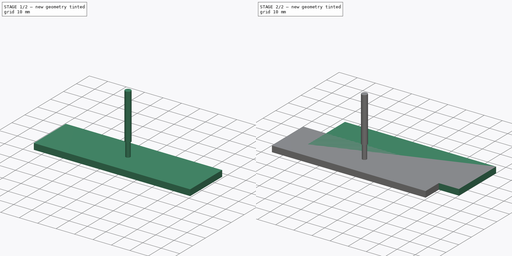
[diagram: build sequence overview — one tinted view per stage of 2, left to right]
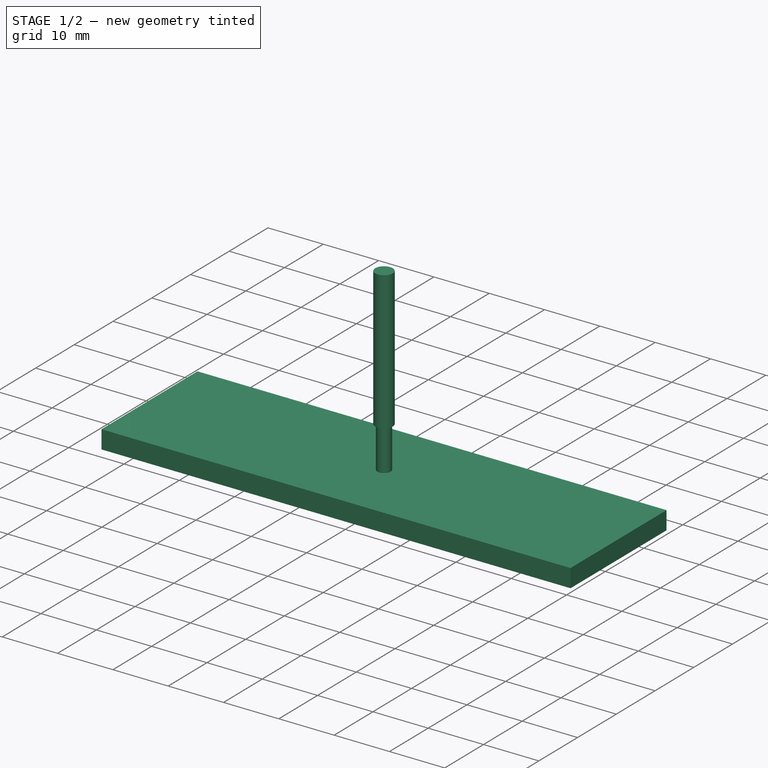
[diagram: stage 1 of 2 — iso view after this stage's code; geometry added in this stage tinted green]
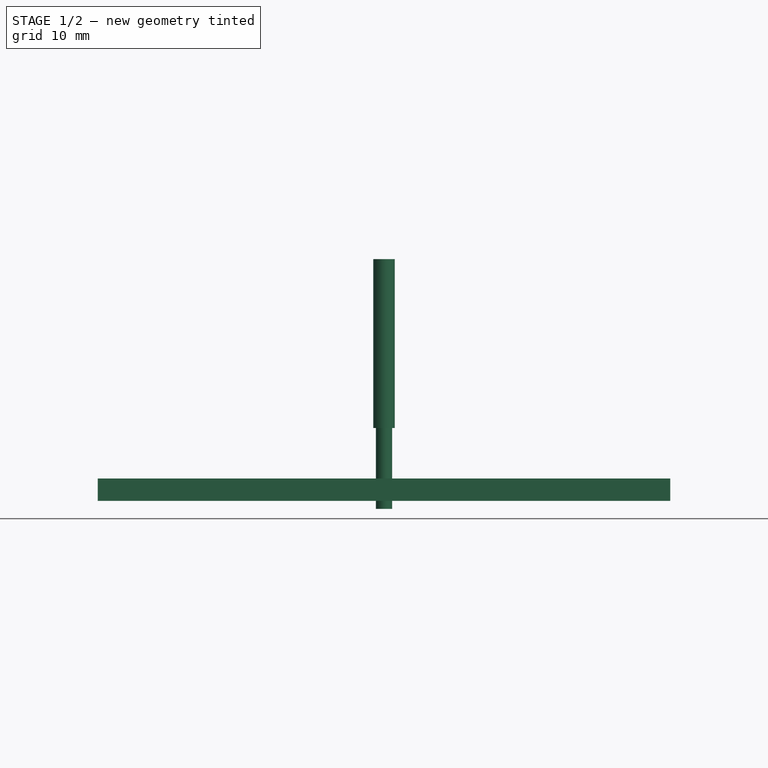
[diagram: stage 1 of 2 — front view after this stage's code; geometry added in this stage tinted green]
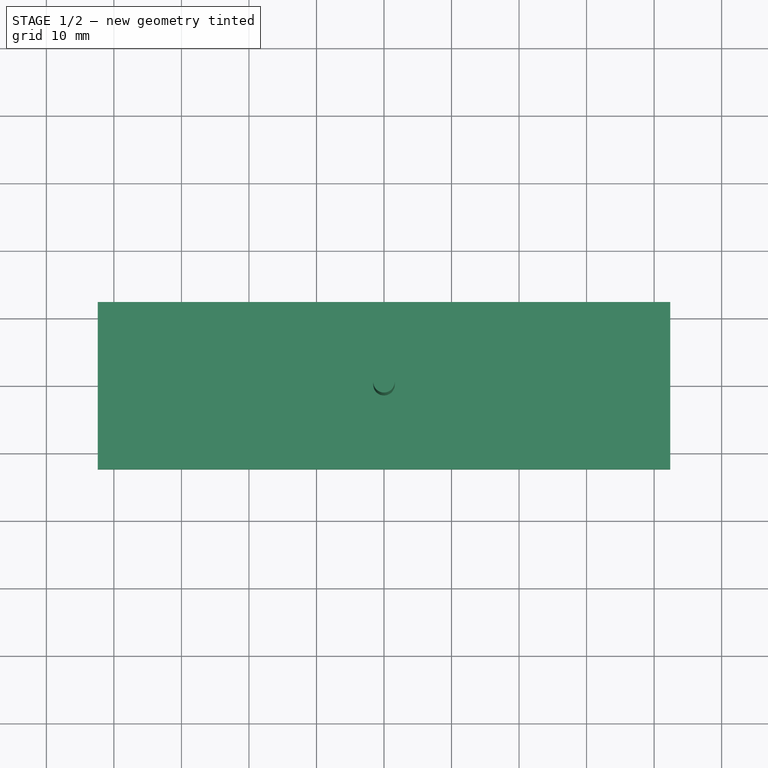
[diagram: stage 1 of 2 — top view after this stage's code; geometry added in this stage tinted green]
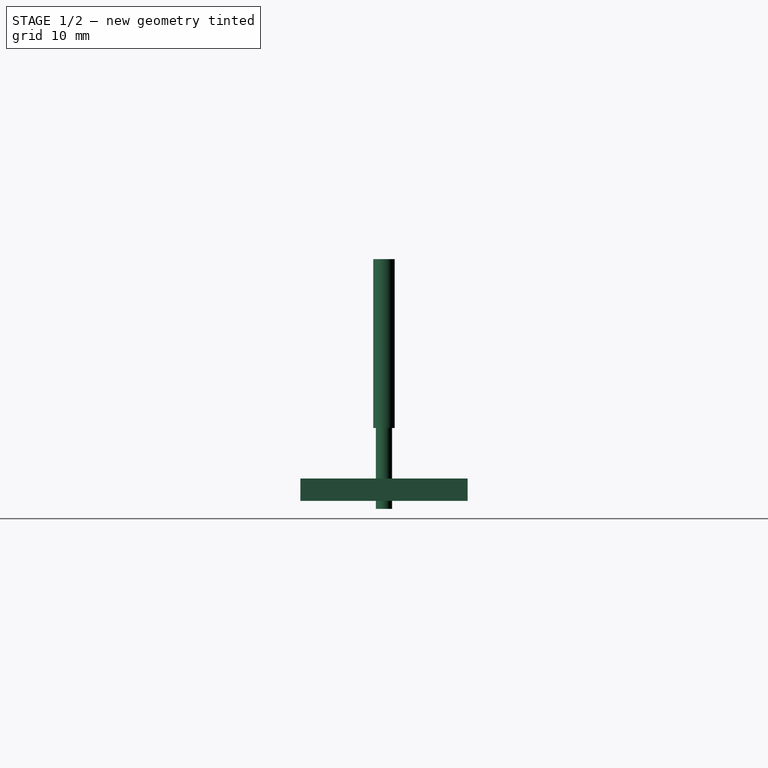
[diagram: stage 1 of 2 — right view after this stage's code; geometry added in this stage tinted green]
FCSTD DOCUMENT  (FreeCAD 0.20R29603 (Git))
Label: Cover
License: All rights reserved
LicenseURL: http://en.wikipedia.org/wiki/All_rights_reserved
objects: App::DocumentObjectGroup×9, Path::FeaturePython×6, Part::FeaturePython×4, Sketcher::SketchObject×2, App::FeaturePython×2, Part::Face×2, Spreadsheet::Sheet×1
note: 10 computed .brp shape members not serialized (recipe doc carries the construction recipe); baked Part::Feature solids carry a one-line shape summary decoded from their .brp

FEATURE [Path::FeaturePython] Job  label="Job_Front"  # Path/CAM operation (typed FeaturePython)
  CycleTime = 00:29:58
  Fixtures = G54
  GeometryTolerance = 0.01
  JobType = 0
  LastPostProcessDate = 2023-07-29 14:56:17.214878
  LastPostProcessOutput = <path>
  Model = -> Model
  Operations = -> Operations
  OrderOutputBy = 0
  PostProcessor = 8
  SetupSheet = -> SetupSheet
  SplitOutput = false
  Stock = -> Stock001
  Tools = -> Tools
FEATURE [App::DocumentObjectGroup] Group  label="Vis_Front"
  Group = -> [Operations,Model,Stock001]
FEATURE [App::FeaturePython] SetupSheet001  # Path/CAM operation (typed FeaturePython)
  ClearanceHeightExpression = OpStockZMax+SetupSheet001.ClearanceHeightOffset
  ClearanceHeightOffset = 5
  CoolantMode = 0
  CoolantModes = None | Flood | Mist
  FinalDepthExpression = OpFinalDepth
  HorizRapid = 0
  SafeHeightExpression = OpStockZMax+SetupSheet001.SafeHeightOffset
  SafeHeightOffset = 3
  StartDepthExpression = OpStartDepth
  StepDownExpression = 0.5
  VertRapid = 0
  expr: StepDownExpression = 0.5
FEATURE [App::DocumentObjectGroup] Model001
  Group = -> [Face001]
FEATURE [Part::FeaturePython] Stock002  # WARN: FeaturePython — macro-defined, semantics opaque (R4)
  Base = -> Model001
  ExtXneg = 1
  ExtXpos = 1
  ExtYneg = 1
  ExtYpos = 1
  ExtZneg = -1.2
  ExtZpos = 4.5
  Placement = pos=(-41.4,-11.3891,0) rot=(0,0,1;0rad)
  StockType = FromBase
FEATURE [Part::FeaturePython] ToolBit  label="2.4mm Endmill001"  # Path/CAM toolbit (typed FeaturePython)
  BitPropertyNames = Chipload | CuttingEdgeHeight | Diameter | Flutes | Length | Material | ShankDiameter | SpindleDirection
  BitShape = C:/Program Files/FreeCAD 0.20/Mod\Path\Tools\Shape\endmill.fcstd
  Chipload = 0
  CuttingEdgeHeight = 12
  Diameter = 2.4
  File = <userpath>/AppData/Roaming/FreeCAD/Bits\Bit\2.4mm_Endmill.fctb
  Flutes = 2
  Length = 37
  Material = 0
  ShankDiameter = 3.17
  ShapeName = endmill
  SpindleDirection = 0
FEATURE [Path::FeaturePython] TC__2_4mm_Endmill001  label="TC: 2.4mm Endmill001"  # Path/CAM operation (typed FeaturePython)
  HorizFeed = 1.67
  HorizRapid = 0
  SpindleDir = 0
  SpindleSpeed = 10000
  Tool = -> ToolBit
  ToolNumber = 2
  VertFeed = 1.67
  VertRapid = 0
  expr: HorizRapid = SetupSheet001.HorizRapid
  expr: VertRapid = SetupSheet001.VertRapid
FEATURE [App::DocumentObjectGroup] Tools001
  Group = -> [TC__2_4mm_Endmill001]
FEATURE [Path::FeaturePython] Profile001  # Path/CAM operation (typed FeaturePython)
  Active = true
  AreaParams:
    Tolerance = 1e-07
    FitArcs = True
    Simplify = False
    CleanDistance = 0.0
    Accuracy = 0.01
    Unit = 1.0
    MinArcPoints = 4
    MaxArcPoints = 100
    ClipperScale = 10000000.0
    Fill = 0
    Coplanar = 0
    Reorient = True
    Outline = False
    Explode = False
    OpenMode = 0
    Deflection = 0.01
    SubjectFill = 0
    ClipFill = 0
    Offset = -1.2
    ExtraPass = 0
    Stepover = 0.0
    LastStepover = 0.0
    JoinType = 0
    EndType = 0
    MiterLimit = 2.0
    RoundPrecision = 0.0
    PocketMode = 0
    ToolRadius = 1.0
    PocketExtraOffset = 0.0
    PocketStepover = 0.0
    PocketLastStepover = 0.0
    FromCenter = False
    Angle = 45.0
    AngleShift = 0.0
    Shift = 0.0
    Thicken = False
    SectionCount = -1
    Stepdown = 1.0
    SectionOffset = 0.0
    SectionTolerance = 1e-06
    SectionMode = 2
    Project = False
  Base = -> [Face001]
  ClearanceHeight = 9.5
  CoolantMode = 0
  CycleTime = 00:28:00
  Direction = 0
  FinalDepth = 1.2
  HandleMultipleFeatures = 0
  JoinType = 0
  MiterLimit = 0.1
  OffsetExtra = 0
  OpFinalDepth = 1.2
  OpStartDepth = 4.5
  OpStockZMax = 4.5
  OpStockZMin = 1.2
  OpToolDiameter = 2.4
  PathParams = {'orientation': 1, 'feedrate': 1.67, 'feedrate_v': 1.67, 'verbose': True, 'resume_height': 7.5, 'retraction': 9.5, 'return_end': True, 'preamble': False}
  SafeHeight = 7.5
  Side = 1
  SplitArcs = false
  StartDepth = 4.5
  StartPoint = (0,0,0)
  StepDown = 0.5
  ToolController = -> TC__2_4mm_Endmill001
  UseComp = true
  UseStartPoint = false
  processCircles = false
  processHoles = false
  processPerimeter = true
  expr: ClearanceHeight = OpStockZMax + SetupSheet001.ClearanceHeightOffset
  expr: FinalDepth = OpFinalDepth
  expr: SafeHeight = OpStockZMax + SetupSheet001.SafeHeightOffset
  expr: StartDepth = OpStartDepth
  expr: StepDown = 0.5
FEATURE [App::DocumentObjectGroup] Operations001
  Group = -> [Profile001]
FEATURE [Path::FeaturePython] Job001  label="Job_Back"  # Path/CAM operation (typed FeaturePython)
  CycleTime = 00:28:00
  Fixtures = G54
  GeometryTolerance = 0.01
  JobType = 0
  LastPostProcessDate = 2023-07-29 14:56:28.999966
  LastPostProcessOutput = <path>
  Model = -> Model001
  Operations = -> Operations001
  OrderOutputBy = 0
  PostProcessor = 8
  SetupSheet = -> SetupSheet001
  SplitOutput = false
  Stock = -> Stock002
  Tools = -> Tools001
FEATURE [App::DocumentObjectGroup] Group002  label="Vis_Back"
  Group = -> [Operations001,Model001,Stock002]
note: 2 file-system paths scrubbed to <path> (originals preserved in the JSON sidecar)
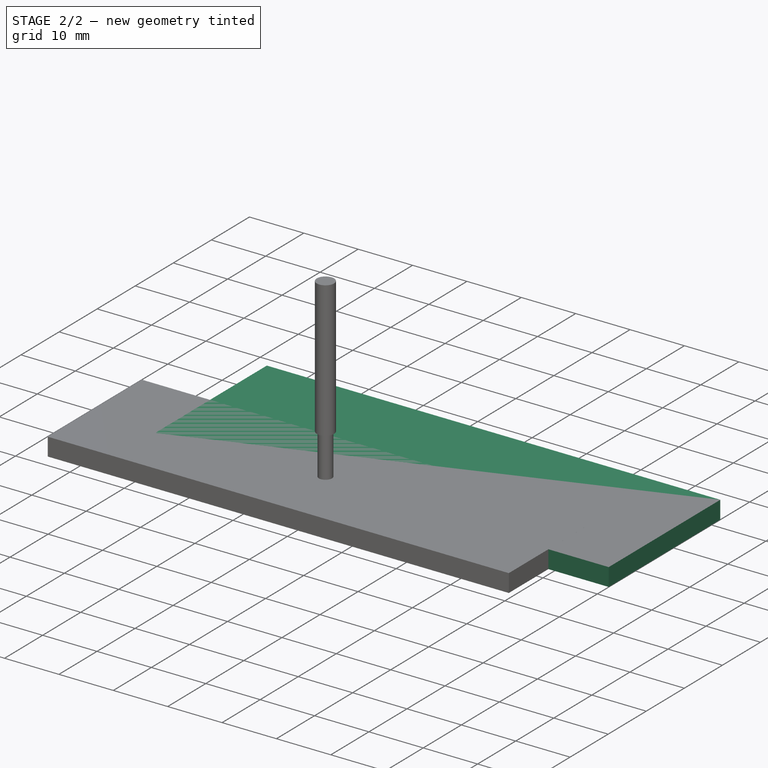
[diagram: stage 2 of 2 — iso view after this stage's code; geometry added in this stage tinted green]
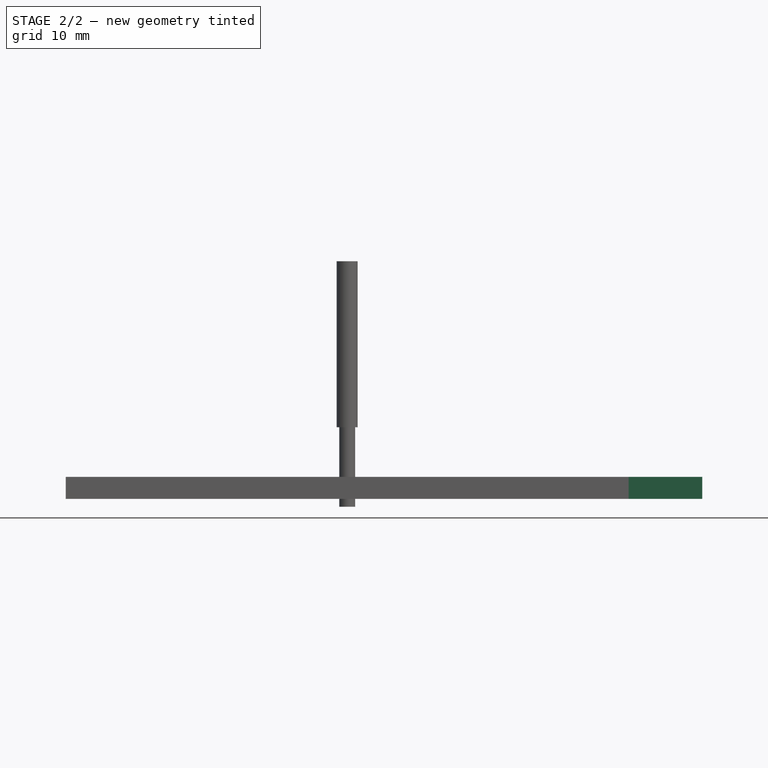
[diagram: stage 2 of 2 — front view after this stage's code; geometry added in this stage tinted green]
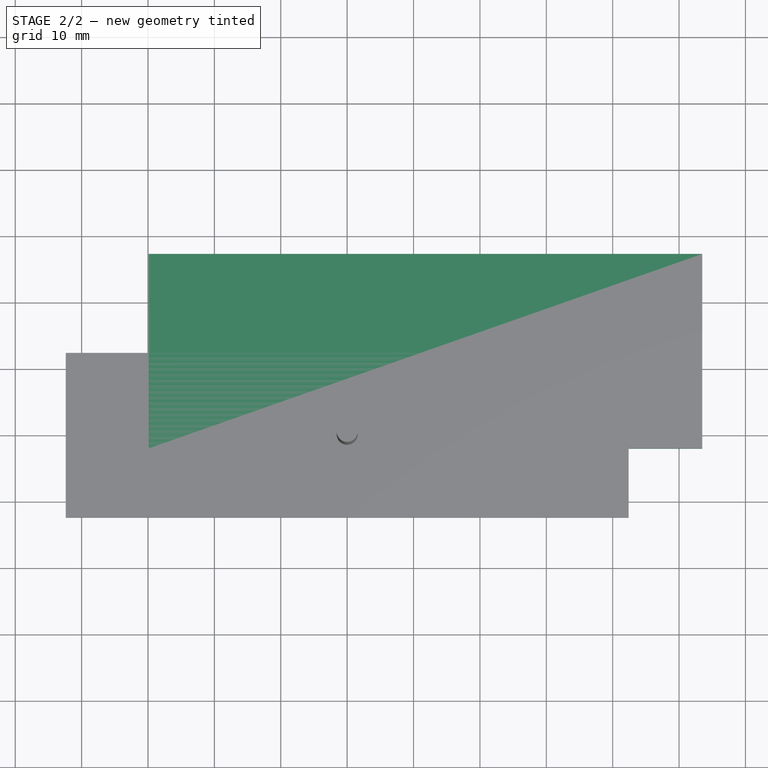
[diagram: stage 2 of 2 — top view after this stage's code; geometry added in this stage tinted green]
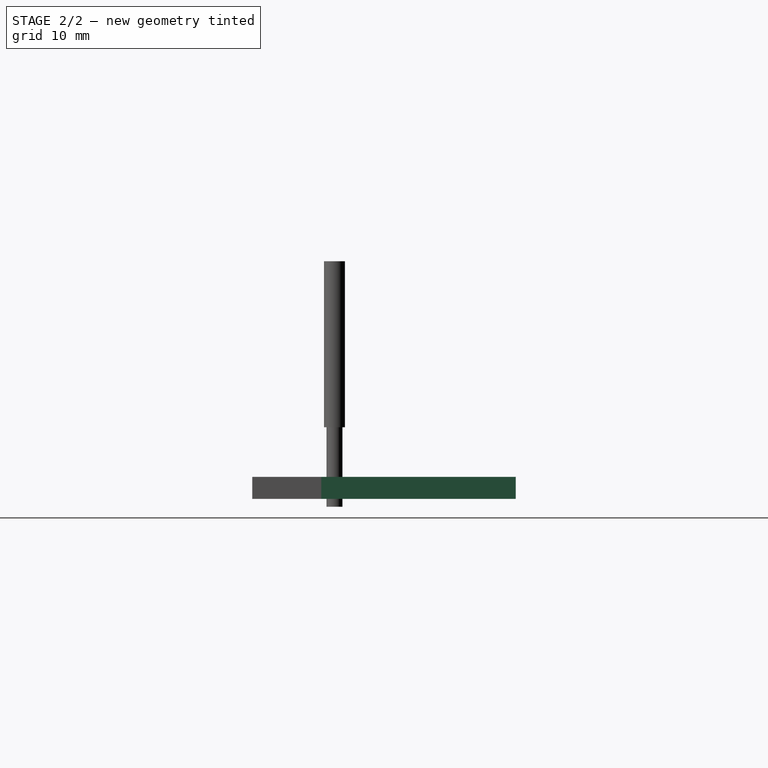
[diagram: stage 2 of 2 — right view after this stage's code; geometry added in this stage tinted green]
FEATURE [Sketcher::SketchObject] Sketch  label="Front"
  FullyConstrained = true
  expr: Constraints[11] = Spreadsheet.xlr_r
  expr: Constraints[14] = Spreadsheet.screw_r
  expr: Constraints[15] = <<Parameters>>.xlr_y
  expr: Constraints[18] = Spreadsheet.screw_r
  expr: Constraints[19] = <<Parameters>>.xlr_x
  expr: Constraints[22] = Spreadsheet.screw_r
  expr: Constraints[26] = <<Parameters>>.btn_r
  expr: Constraints[2] = <<Parameters>>.usb_y
  expr: Constraints[31] = <<Parameters>>.btn_r
  expr: Constraints[33] = <<Parameters>>.btn_r
  expr: Constraints[35] = <<Parameters>>.btn_r
  expr: Constraints[40] = <<Parameters>>.btn_x
  expr: Constraints[41] = <<Parameters>>.btn_x
  expr: Constraints[42] = <<Parameters>>.btn_y
  expr: Constraints[43] = <<Parameters>>.btn_y
  expr: Constraints[52] = <<Parameters>>.oled_x
  expr: Constraints[53] = <<Parameters>>.oled_y
  expr: Constraints[56] = <<Parameters>>.usb_x
  expr: Constraints[63] = <<Parameters>>.xlr_y
  expr: Constraints[64] = <<Parameters>>.xlr_x
  expr: Constraints[8] = Spreadsheet.screw_r
  sketch-geometry (29):
    g0: GeomPoint X=20.75 Y=0 Z=0
    g1: LineSegment StartX=25.5 StartY=0 StartZ=0 EndX=16 EndY=0 EndZ=0
    g2: LineSegment StartX=16 StartY=4 StartZ=0 EndX=25.5 EndY=4 EndZ=0
    g3: LineSegment StartX=16 StartY=4 StartZ=0 EndX=16 EndY=0 EndZ=0
    g4: LineSegment StartX=25.5 StartY=4 StartZ=0 EndX=25.5 EndY=0 EndZ=0
    g5: GeomPoint X=6.1 Y=4 Z=0
    g6: Circle CenterX=6.1 CenterY=4 CenterZ=0 NormalX=0 NormalY=0 NormalZ=1 AngleXU=0 Radius=1.5
    g7: GeomPoint X=4.6 Y=4 Z=0
    g8: Circle CenterX=-13.5 CenterY=12.8 CenterZ=0 NormalX=0 NormalY=0 NormalZ=1 AngleXU=0 Radius=11.2
    g9: GeomPoint X=-2.3 Y=12.8 Z=0
    g10: Circle CenterX=-23.4 CenterY=2.9 CenterZ=0 NormalX=0 NormalY=0 NormalZ=1 AngleXU=0 Radius=1.5
    g11: GeomPoint X=-21.9 Y=2.9 Z=0
    g12: Circle CenterX=-3.6 CenterY=22.7 CenterZ=0 NormalX=0 NormalY=0 NormalZ=1 AngleXU=0 Radius=1.5
    g13: GeomPoint X=-2.1 Y=22.7 Z=0
    g14: Circle CenterX=14.5 CenterY=17.3 CenterZ=0 NormalX=0 NormalY=0 NormalZ=1 AngleXU=0 Radius=1.5
    g15: GeomPoint X=16 Y=17.3 Z=0
    g16: Circle CenterX=8.5 CenterY=22.7 CenterZ=0 NormalX=0 NormalY=0 NormalZ=1 AngleXU=0 Radius=2
    g17: GeomPoint X=10.5 Y=22.7 Z=0
    g18: Circle CenterX=8.5 CenterY=11.9 CenterZ=0 NormalX=0 NormalY=0 NormalZ=1 AngleXU=0 Radius=2
    g19: Circle CenterX=20.5 CenterY=22.7 CenterZ=0 NormalX=0 NormalY=0 NormalZ=1 AngleXU=0 Radius=2
    g20: Circle CenterX=20.5 CenterY=11.9 CenterZ=0 NormalX=0 NormalY=0 NormalZ=1 AngleXU=0 Radius=2
    g21: GeomPoint X=22.5 Y=22.7 Z=0
    g22: GeomPoint X=22.5 Y=11.9 Z=0
    g23: GeomPoint X=10.5 Y=11.9 Z=0
    g24: LineSegment StartX=29.5 StartY=25.3 StartZ=0 EndX=54.5 EndY=25.3 EndZ=0
    g25: LineSegment StartX=54.5 StartY=25.3 StartZ=0 EndX=54.5 EndY=10.3 EndZ=0
    g26: LineSegment StartX=54.5 StartY=10.3 StartZ=0 EndX=29.5 EndY=10.3 EndZ=0
    g27: LineSegment StartX=29.5 StartY=10.3 StartZ=0 EndX=29.5 EndY=25.3 EndZ=0
    g28: GeomPoint X=42 Y=25.3 Z=0
  constraints (72):
    c: PointOnObject(g0,g-1)
    c: Parallel(g1,g2)
    c: DistanceY(g1,g2) = 4
    c: Horizontal(g4,g3)
    c: Symmetric(g1,g1,g0)
    c: Coincident(g6,g5)
    c: PointOnObject(g7,g6)
    c: Horizontal(g6,g7)
    c: DistanceX(g7,g6) = 1.5
    c: PointOnObject(g9,g8)
    c: Horizontal(g9,g8)
    c: DistanceX(g8,g9) = 11.2
    c: PointOnObject(g11,g10)
    c: Horizontal(g10,g11)
    c: DistanceX(g10,g11) = 1.5
    c: DistanceY(g10,g8) = 9.9
    c: PointOnObject(g13,g12)
    c: Horizontal(g13,g12)
    c: DistanceX(g12,g13) = 1.5
    c: DistanceX(g10,g8) = 9.9
    c: PointOnObject(g15,g14)
    c: Horizontal(g14,g15)
    c: DistanceX(g14,g15) = 1.5
    c: DistanceY(g-1,g14) = 17.3
    c: PointOnObject(g17,g16)
    c: Horizontal(g16,g17)
    c: DistanceX(g16,g17) = 2
    c: PointOnObject(g21,g19)
    c: PointOnObject(g22,g20)
    c: PointOnObject(g23,g18)
    c: Horizontal(g18,g23)
    c: DistanceX(g18,g23) = 2
    c: Horizontal(g19,g21)
    c: DistanceX(g19,g21) = 2
    c: Horizontal(g20,g22)
    c: DistanceX(g20,g22) = 2
    c: Vertical(g16,g18)
    c: Vertical(g19,g20)
    c: Horizontal(g16,g19)
    c: Horizontal(g20,g18)
    c: DistanceX(g14,g20) = 6
    c: DistanceX(g18,g14) = 6
    c: DistanceY(g18,g14) = 5.4
    c: DistanceY(g14,g16) = 5.4
    c: Coincident(g24,g25)
    c: Coincident(g25,g26)
    c: Coincident(g26,g27)
    c: Coincident(g27,g24)
    c: Horizontal(g24)
    c: Horizontal(g26)
    c: Vertical(g25)
    c: Vertical(g27)
    c: DistanceX(g24,g24) = 25
    c: DistanceY(g25,g25) = 15
    c: Horizontal(g12,g16)
    c: Coincident(g3,g1)
    c: DistanceX(g2,g2) = 9.5
    c: Parallel(g3,g4)
    c: Coincident(g2,g3)
    c: Coincident(g2,g4)
    c: Perpendicular(g3,g1)
    c: Coincident(g1,g4)
    c: DistanceX(g-1,g0) = 20.75
    c: DistanceY(g8,g12) = 9.9
    c: DistanceX(g8,g12) = 9.9
    c: Symmetric(g24,g24,g28)
    c: DistanceX(g14,g28) = 27.5
    c: DistanceY(g14,g28) = 8
    c: DistanceY(g-1,g6) = 4
    c: DistanceX(g-1,g14) = 14.5
    c: DistanceX(g-1,g6) = 6.1
    c: DistanceX(g8,g-1) = 13.5
FEATURE [App::FeaturePython] SetupSheet  # Path/CAM operation (typed FeaturePython)
  ClearanceHeightExpression = OpStockZMax+SetupSheet.ClearanceHeightOffset
  ClearanceHeightOffset = 5
  CoolantMode = 0
  CoolantModes = None | Flood | Mist
  FinalDepthExpression = OpFinalDepth
  HorizRapid = 0
  SafeHeightExpression = OpStockZMax+SetupSheet.SafeHeightOffset
  SafeHeightOffset = 3
  StartDepthExpression = OpStartDepth
  StepDownExpression = 0.5
  VertRapid = 0
FEATURE [Part::FeaturePython] ToolBit003  label="2.4mm Endmill"  # Path/CAM toolbit (typed FeaturePython)
  BitPropertyNames = Chipload | CuttingEdgeHeight | Diameter | Flutes | Length | Material | ShankDiameter | SpindleDirection
  BitShape = C:/Program Files/FreeCAD 0.20/Mod\Path\Tools\Shape\endmill.fcstd
  Chipload = 0
  CuttingEdgeHeight = 12
  Diameter = 2.4
  File = <userpath>/AppData/Roaming/FreeCAD/Bits\Bit\2.4mm_Endmill.fctb
  Flutes = 0
  Length = 37
  Material = 0
  ShankDiameter = 3.17
  ShapeName = endmill
  SpindleDirection = 0
FEATURE [Path::FeaturePython] TC__2_4mm_Endmill  label="TC: 2.4mm Endmill"  # Path/CAM operation (typed FeaturePython)
  HorizFeed = 1.67
  HorizRapid = 0
  SpindleDir = 0
  SpindleSpeed = 10000
  Tool = -> ToolBit003
  ToolNumber = 2
  VertFeed = 1.67
  VertRapid = 0
  expr: HorizRapid = SetupSheet.HorizRapid
  expr: VertRapid = SetupSheet.VertRapid
FEATURE [App::DocumentObjectGroup] Tools
  Group = -> [TC__2_4mm_Endmill]
FEATURE [Path::FeaturePython] Profile  # Path/CAM operation (typed FeaturePython)
  Active = true
  AreaParams:
    Tolerance = 1e-07
    FitArcs = True
    Simplify = False
    CleanDistance = 0.0
    Accuracy = 0.01
    Unit = 1.0
    MinArcPoints = 4
    MaxArcPoints = 100
    ClipperScale = 10000000.0
    Fill = 0
    Coplanar = 0
    Reorient = True
    Outline = False
    Explode = False
    OpenMode = 0
    Deflection = 0.01
    SubjectFill = 0
    ClipFill = 0
    Offset = -1.2
    ExtraPass = 0
    Stepover = 0.0
    LastStepover = 0.0
    JoinType = 0
    EndType = 0
    MiterLimit = 2.0
    RoundPrecision = 0.0
    PocketMode = 0
    ToolRadius = 1.0
    PocketExtraOffset = 0.0
    PocketStepover = 0.0
    PocketLastStepover = 0.0
    FromCenter = False
    Angle = 45.0
    AngleShift = 0.0
    Shift = 0.0
    Thicken = False
    SectionCount = -1
    Stepdown = 1.0
    SectionOffset = 0.0
    SectionTolerance = 1e-06
    SectionMode = 2
    Project = False
  ClearanceHeight = 9.5
  CoolantMode = 0
  CycleTime = 00:29:58
  Direction = 0
  FinalDepth = 1.2
  HandleMultipleFeatures = 0
  JoinType = 0
  MiterLimit = 0.1
  OffsetExtra = 0
  OpFinalDepth = 1.2
  OpStartDepth = 4.5
  OpStockZMax = 4.5
  OpStockZMin = 1.2
  OpToolDiameter = 2.4
  PathParams = {'orientation': 1, 'feedrate': 1.67, 'feedrate_v': 1.67, 'verbose': True, 'resume_height': 7.5, 'retraction': 9.5, 'return_end': True, 'preamble': False}
  SafeHeight = 7.5
  Side = 1
  SplitArcs = false
  StartDepth = 4.5
  StartPoint = (0,0,0)
  StepDown = 0.5
  ToolController = -> TC__2_4mm_Endmill
  UseComp = true
  UseStartPoint = false
  processCircles = false
  processHoles = false
  processPerimeter = true
  expr: ClearanceHeight = OpStockZMax + SetupSheet.ClearanceHeightOffset
  expr: FinalDepth = OpFinalDepth
  expr: SafeHeight = OpStockZMax + SetupSheet.SafeHeightOffset
  expr: StartDepth = OpStartDepth
FEATURE [App::DocumentObjectGroup] Operations
  Group = -> [Profile]
FEATURE [Spreadsheet::Sheet] Spreadsheet  label="Parameters"
  cells = B1=Radius; C1=X / Width; D1=Y / Height; A2=Screws; B2(screw_r)==1.5 mm; E2=Drill Radius for the M2 screw holes & reset hole; A3=XLR; B3(xlr_r)==11.2 mm; C3(xlr_x)==9.9 mm; D3(xlr_y)==9.9 mm; E3=Radius for the XLR connector & distance from center for the screw holes; A4=USB C; C4(usb_x)==9.5 mm; D4(usb_y)==4 mm; E4=Dimensions for the USB C connector hole; A5=OLED Display; C5(oled_x)==25 mm; D5(oled_y)==15 mm; E5=Dimensions for the OLED hole; A6=Button Holes; B6(btn_r)==2 mm; C6(btn_x)==6 mm; D6(btn_y)==5.4 mm; E6=Measured from M2 center hole in Display Module; A7=XLR Distance; C7(xlr_d)==30 mm; E7=Distance between XLR ports on the back side
FEATURE [Sketcher::SketchObject] Sketch001  label="Back"
  FullyConstrained = true
  expr: Constraints[21] = <<Parameters>>.xlr_r
  expr: Constraints[22] = <<Parameters>>.xlr_r
  expr: Constraints[24] = <<Parameters>>.screw_r
  expr: Constraints[25] = <<Parameters>>.screw_r
  expr: Constraints[26] = <<Parameters>>.screw_r
  expr: Constraints[27] = <<Parameters>>.screw_r
  expr: Constraints[28] = <<Parameters>>.screw_r
  expr: Constraints[29] = <<Parameters>>.screw_r
  expr: Constraints[30] = <<Parameters>>.xlr_d
  expr: Constraints[31] = <<Parameters>>.xlr_d
  expr: Constraints[32] = <<Parameters>>.xlr_x
  expr: Constraints[33] = <<Parameters>>.xlr_x
  expr: Constraints[34] = <<Parameters>>.xlr_x
  expr: Constraints[35] = <<Parameters>>.xlr_x
  expr: Constraints[36] = <<Parameters>>.xlr_x
  expr: Constraints[37] = <<Parameters>>.xlr_x
  expr: Constraints[38] = <<Parameters>>.xlr_y
  expr: Constraints[39] = <<Parameters>>.xlr_y
  expr: Constraints[3] = <<Parameters>>.xlr_r
  expr: Constraints[40] = <<Parameters>>.xlr_y
  expr: Constraints[41] = <<Parameters>>.xlr_y
  expr: Constraints[42] = <<Parameters>>.xlr_y
  expr: Constraints[43] = <<Parameters>>.xlr_y
  sketch-geometry (18):
    g0: Circle CenterX=0 CenterY=0 CenterZ=0 NormalX=0 NormalY=0 NormalZ=1 AngleXU=0 Radius=11.2
    g1: GeomPoint X=11.2 Y=0 Z=0
    g2: Circle CenterX=9.9 CenterY=9.9 CenterZ=0 NormalX=0 NormalY=0 NormalZ=1 AngleXU=0 Radius=1.5
    g3: Circle CenterX=-9.9 CenterY=-9.9 CenterZ=0 NormalX=0 NormalY=0 NormalZ=1 AngleXU=0 Radius=1.5
    g4: Circle CenterX=30 CenterY=0 CenterZ=0 NormalX=0 NormalY=0 NormalZ=1 AngleXU=0 Radius=11.2
    g5: Circle CenterX=-30 CenterY=0 CenterZ=0 NormalX=0 NormalY=0 NormalZ=1 AngleXU=0 Radius=11.2
    g6: Circle CenterX=-20.1 CenterY=9.9 CenterZ=0 NormalX=0 NormalY=0 NormalZ=1 AngleXU=0 Radius=1.5
    g7: Circle CenterX=-39.9 CenterY=-9.9 CenterZ=0 NormalX=0 NormalY=0 NormalZ=1 AngleXU=0 Radius=1.5
    g8: Circle CenterX=20.1 CenterY=-9.9 CenterZ=0 NormalX=0 NormalY=0 NormalZ=1 AngleXU=0 Radius=1.5
    g9: Circle CenterX=39.9 CenterY=9.9 CenterZ=0 NormalX=0 NormalY=0 NormalZ=1 AngleXU=0 Radius=1.5
    g10: GeomPoint X=11.4 Y=9.9 Z=0
    g11: GeomPoint X=21.6 Y=-9.9 Z=0
    g12: GeomPoint X=41.2 Y=0 Z=0
    g13: GeomPoint X=41.4 Y=9.9 Z=0
    g14: GeomPoint X=-8.4 Y=-9.9 Z=0
    g15: GeomPoint X=-18.8 Y=0 Z=0
    g16: GeomPoint X=-18.6 Y=9.9 Z=0
    g17: GeomPoint X=-38.4 Y=-9.9 Z=0
  constraints (44):
    c: Coincident(g0,g-1)
    c: PointOnObject(g1,g0)
    c: Horizontal(g0,g1)
    c: DistanceX(g0,g1) = 11.2
    c: PointOnObject(g4,g-1)
    c: PointOnObject(g10,g2)
    c: PointOnObject(g11,g8)
    c: PointOnObject(g12,g4)
    c: PointOnObject(g13,g9)
    c: PointOnObject(g14,g3)
    c: PointOnObject(g16,g6)
    c: PointOnObject(g17,g7)
    c: PointOnObject(g15,g5)
    c: Horizontal(g5,g15)
    c: Horizontal(g6,g16)
    c: Horizontal(g7,g17)
    c: Horizontal(g3,g14)
    c: Horizontal(g2,g10)
    c: Horizontal(g4,g12)
    c: Horizontal(g9,g13)
    c: Horizontal(g8,g11)
    c: DistanceX(g4,g12) = 11.2
    c: DistanceX(g5,g15) = 11.2
    c: Horizontal(g5,g0)
    c: DistanceX(g6,g16) = 1.5
    c: DistanceX(g7,g17) = 1.5
    c: DistanceX(g3,g14) = 1.5
    c: DistanceX(g2,g10) = 1.5
    c: DistanceX(g9,g13) = 1.5
    c: DistanceX(g8,g11) = 1.5
    c: DistanceX(g5,g0) = 30
    c: DistanceX(g0,g4) = 30
    c: DistanceX(g7,g5) = 9.9
    c: DistanceX(g3,g0) = 9.9
    c: DistanceX(g5,g6) = 9.9
    c: DistanceX(g0,g2) = 9.9
    c: DistanceX(g8,g4) = 9.9
    c: DistanceX(g4,g9) = 9.9
    c: DistanceY(g4,g9) = 9.9
    c: DistanceY(g8,g4) = 9.9
    c: DistanceY(g0,g2) = 9.9
    c: DistanceY(g3,g0) = 9.9
    c: DistanceY(g7,g5) = 9.9
    c: DistanceY(g5,g6) = 9.9
FEATURE [App::DocumentObjectGroup] Group001  label="Sketches"
  Group = -> [Sketch001,Spreadsheet,Sketch]
FEATURE [Part::Face] Face001  label="Back_Face"
  FaceMakerClass = Part::FaceMakerBullseye
  Placement = pos=(0,0,-5) rot=(0,0,1;0rad)
  Sources = -> [Sketch001]
FEATURE [Part::Face] Face  label="Front_Face"
  FaceMakerClass = Part::FaceMakerBullseye
  Placement = pos=(0,0,-5) rot=(0,0,1;0rad)
  Sources = -> [Sketch]
FEATURE [App::DocumentObjectGroup] Model
  Group = -> [Face]
FEATURE [Part::FeaturePython] Stock001  # WARN: FeaturePython — macro-defined, semantics opaque (R4)
  Base = -> Model
  ExtXneg = 2
  ExtXpos = 2
  ExtYneg = 2
  ExtYpos = 2
  ExtZneg = -1.2
  ExtZpos = 4.5
  Placement = pos=(-27.9,0,0) rot=(0,0,1;0rad)
  StockType = FromBase
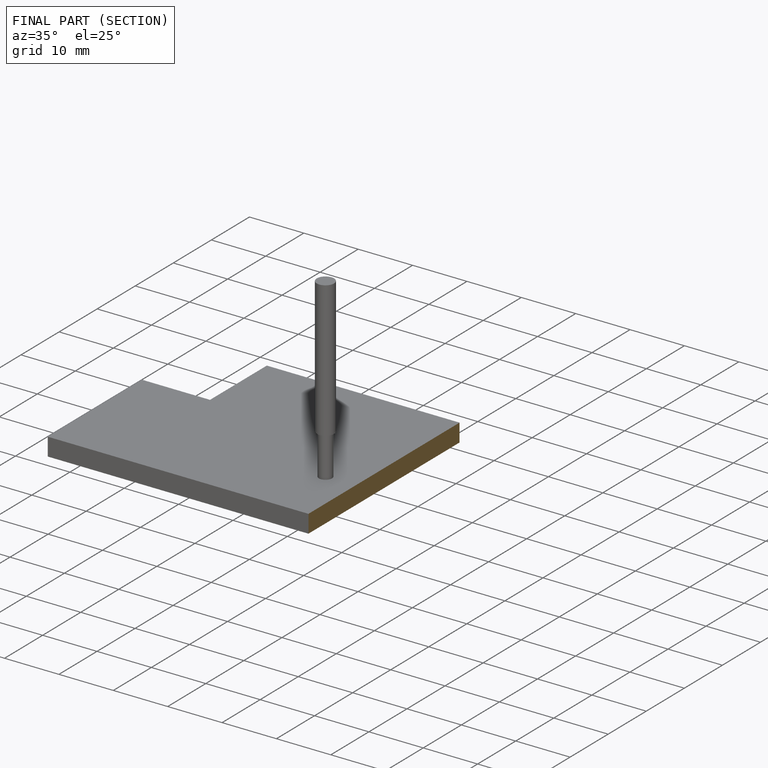
[diagram: finished part — half-section view (interior)]
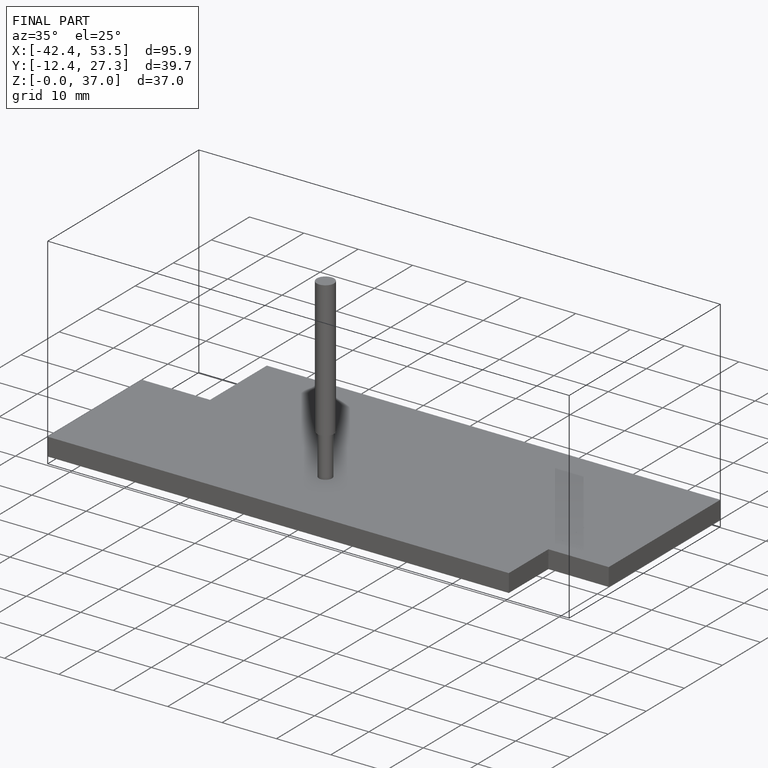
[diagram: finished part — iso view with bounding-box wireframe]
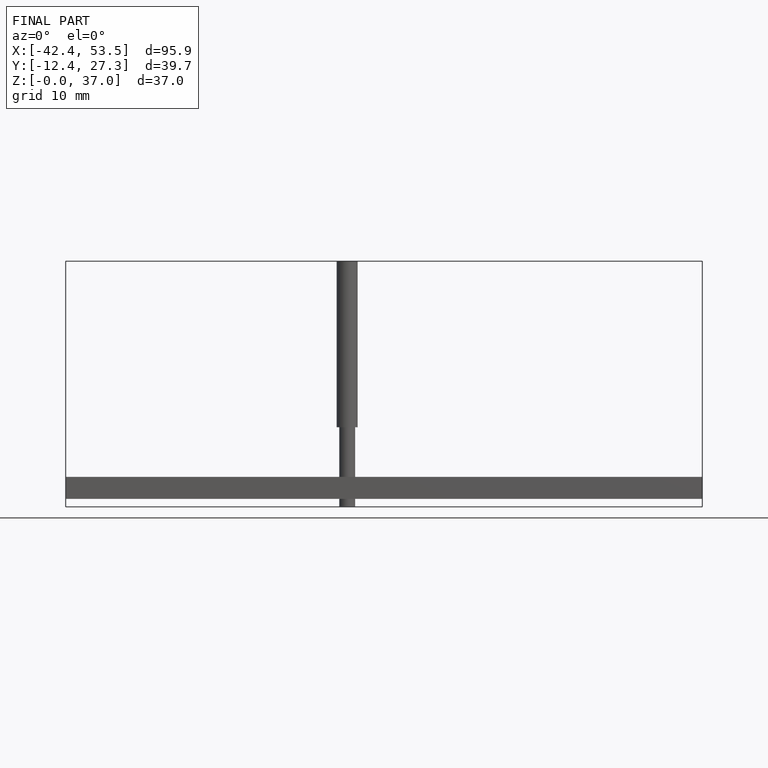
[diagram: finished part — front view with bounding-box wireframe]
